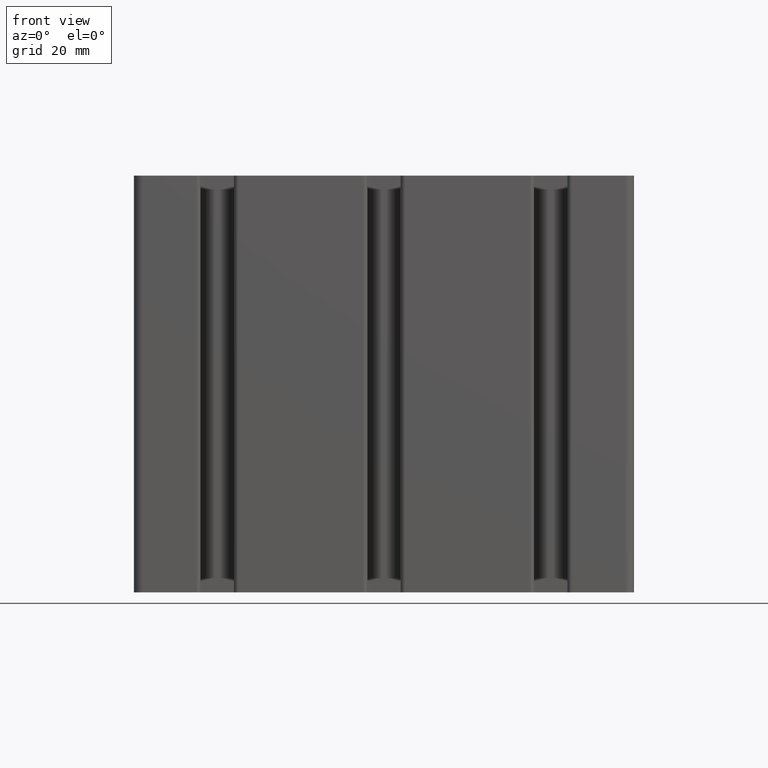
[diagram: clean part render]
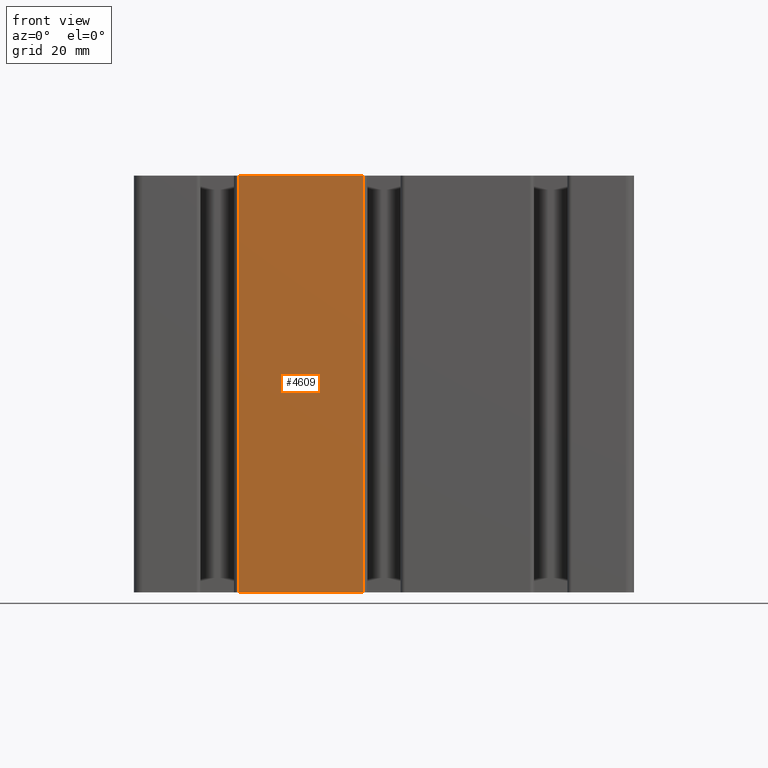
[diagram: same view with one face highlighted and labeled with its STEP entity id]
A machine part, front view. The second image highlights one B-rep face of the part: STEP entity #4609.
In plain terms, the highlighted planar face has unit normal (0, -1, 0).
Its self-contained STEP definition (entity closure, byte-faithful):
#135=PLANE('',#5075);
#363=FACE_OUTER_BOUND('',#601,.T.);
#601=EDGE_LOOP('',(#3751,#3752,#3753,#3754));
#804=LINE('',#7037,#1248);
#862=LINE('',#7213,#1306);
#1048=LINE('',#7798,#1492);
#1049=LINE('',#7799,#1493);
#1248=VECTOR('',#5652,100.);
#1306=VECTOR('',#5826,100.);
#1492=VECTOR('',#6410,29.9999999999999);
#1493=VECTOR('',#6411,29.9999999999999);
#1946=VERTEX_POINT('',#7031);
#1948=VERTEX_POINT('',#7035);
#2007=VERTEX_POINT('',#7210);
#2008=VERTEX_POINT('',#7212);
#2492=EDGE_CURVE('',#1946,#1948,#804,.T.);
#2579=EDGE_CURVE('',#2007,#2008,#862,.T.);
#2868=EDGE_CURVE('',#2008,#1948,#1048,.T.);
#2869=EDGE_CURVE('',#2007,#1946,#1049,.T.);
#3751=ORIENTED_EDGE('',*,*,#2492,.T.);
#3752=ORIENTED_EDGE('',*,*,#2868,.F.);
#3753=ORIENTED_EDGE('',*,*,#2579,.F.);
#3754=ORIENTED_EDGE('',*,*,#2869,.T.);
#4609=ADVANCED_FACE('',(#363),#135,.T.);
#5075=AXIS2_PLACEMENT_3D('',#7797,#6408,#6409);
#5652=DIRECTION('',(0.,0.,-1.));
#5826=DIRECTION('',(0.,0.,-1.));
#6408=DIRECTION('center_axis',(0.,-1.,0.));
#6409=DIRECTION('ref_axis',(1.,0.,0.));
#6410=DIRECTION('',(-1.,0.,0.));
#6411=DIRECTION('',(-1.,0.,0.));
#7031=CARTESIAN_POINT('',(-35.,-40.,100.));
#7035=CARTESIAN_POINT('',(-35.,-40.,0.));
#7037=CARTESIAN_POINT('',(-35.0000000000001,-40.,0.));
#7210=CARTESIAN_POINT('',(-5.00000000000014,-40.,100.));
#7212=CARTESIAN_POINT('',(-5.00000000000014,-40.,0.));
#7213=CARTESIAN_POINT('',(-5.00000000000009,-40.,0.));
#7797=CARTESIAN_POINT('Origin',(-58.,-40.,0.));
#7798=CARTESIAN_POINT('',(-29.,-40.,0.));
#7799=CARTESIAN_POINT('',(-29.,-40.,100.));